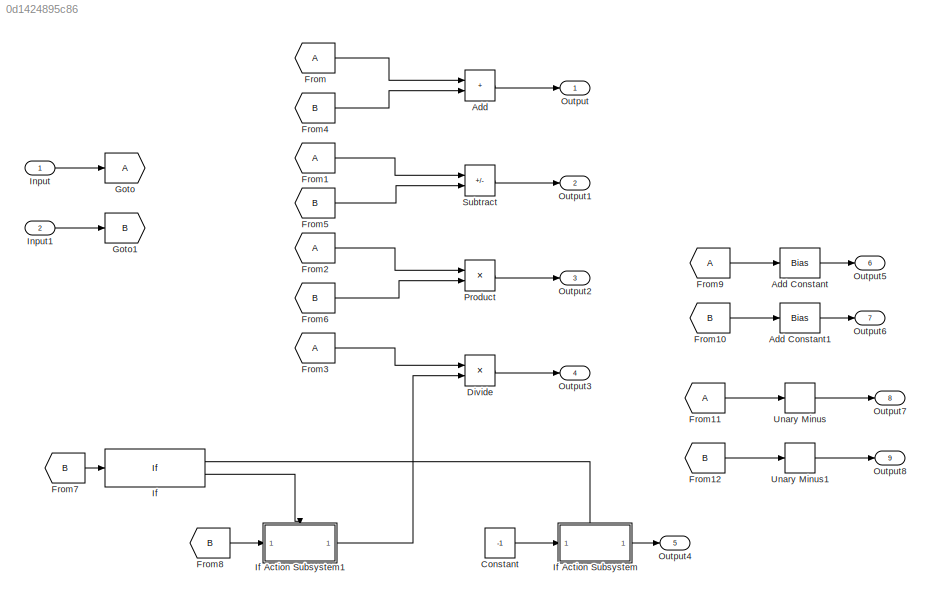
MODEL slx_0d1424895c86
KIND model
CONFIG AbsTol = auto
CONFIG EnableMultiTasking = off
CONFIG FixedStep = auto
CONFIG MaxStep = auto
CONFIG MinStep = auto
CONFIG RelTol = 1e-3
CONFIG SampleTimeConstraint = Unconstrained
CONFIG SolverName = VariableStepAuto
CONFIG StartTime = 0.0
CONFIG StopTime = 10.0
BLOCK [Sum] Add
  IconShape = rectangular
  Ports = [2, 1]
BLOCK [Bias] Add Constant
  Bias = 1
  SaturateOnIntegerOverflow = off
BLOCK [Bias] Add Constant1
  Bias = 1
  SaturateOnIntegerOverflow = off
BLOCK [Constant] Constant
  Value = -1
BLOCK [Product] Divide
  Inputs = */
  Ports = [2, 1]
BLOCK [From] From
BLOCK [From] From1
BLOCK [From] From10
  GotoTag = B
BLOCK [From] From11
BLOCK [From] From12
  GotoTag = B
BLOCK [From] From2
BLOCK [From] From3
BLOCK [From] From4
  GotoTag = B
BLOCK [From] From5
  GotoTag = B
BLOCK [From] From6
  GotoTag = B
BLOCK [From] From7
  GotoTag = B
BLOCK [From] From8
  GotoTag = B
BLOCK [From] From9
BLOCK [Goto] Goto
BLOCK [Goto] Goto1
  GotoTag = B
BLOCK [If] If
  IfExpression = u1 == 0
  Ports = [1, 2]
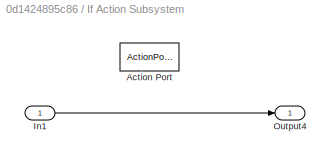
BLOCK [SubSystem] If Action Subsystem
  Ports = [1, 1, 0, 0, 0, 0, 0, 1]
  RequestExecContextInheritance = off
  TreatAsAtomicUnit = on
BLOCK [ActionPort] If Action Subsystem/Action Port
  ActionPortLabel = if(u1 == 0)
BLOCK [Inport] If Action Subsystem/In1
BLOCK [Outport] If Action Subsystem/Output4
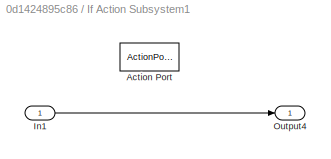
BLOCK [SubSystem] If Action Subsystem1
  Ports = [1, 1, 0, 0, 0, 0, 0, 1]
  RequestExecContextInheritance = off
  TreatAsAtomicUnit = on
BLOCK [ActionPort] If Action Subsystem1/Action Port
  ActionPortLabel = else
BLOCK [Inport] If Action Subsystem1/In1
BLOCK [Outport] If Action Subsystem1/Output4
BLOCK [Inport] Input
BLOCK [Inport] Input1
  Port = 2
BLOCK [Outport] Output
BLOCK [Outport] Output1
  Port = 2
BLOCK [Outport] Output2
  Port = 3
BLOCK [Outport] Output3
  Port = 4
BLOCK [Outport] Output4
  Port = 5
BLOCK [Outport] Output5
  Port = 6
BLOCK [Outport] Output6
  Port = 7
BLOCK [Outport] Output7
  Port = 8
BLOCK [Outport] Output8
  Port = 9
BLOCK [Product] Product
  Ports = [2, 1]
BLOCK [Sum] Subtract
  IconShape = rectangular
  Inputs = +-
  Ports = [2, 1]
BLOCK [UnaryMinus] Unary Minus
BLOCK [UnaryMinus] Unary Minus1
LINE Add Constant1:1 -> Output6:1
LINE Add Constant:1 -> Output5:1
LINE Add:1 -> Output:1
LINE Constant:1 -> If Action Subsystem:1
LINE Divide:1 -> Output3:1
LINE From10:1 -> Add Constant1:1
LINE From11:1 -> Unary Minus:1
LINE From12:1 -> Unary Minus1:1
LINE From1:1 -> Subtract:1
LINE From2:1 -> Product:1
LINE From3:1 -> Divide:1
LINE From4:1 -> Add:2
LINE From5:1 -> Subtract:2
LINE From6:1 -> Product:2
LINE From7:1 -> If:1
LINE From8:1 -> If Action Subsystem1:1
LINE From9:1 -> Add Constant:1
LINE From:1 -> Add:1
LINE If Action Subsystem/In1:1 -> If Action Subsystem/Output4:1
LINE If Action Subsystem1/In1:1 -> If Action Subsystem1/Output4:1
LINE If Action Subsystem1:1 -> Divide:2
LINE If Action Subsystem:1 -> Output4:1
LINE If:1 -> If Action Subsystem:ifaction
LINE If:2 -> If Action Subsystem1:ifaction
LINE Input1:1 -> Goto1:1
LINE Input:1 -> Goto:1
LINE Product:1 -> Output2:1
LINE Subtract:1 -> Output1:1
LINE Unary Minus1:1 -> Output8:1
LINE Unary Minus:1 -> Output7:1
